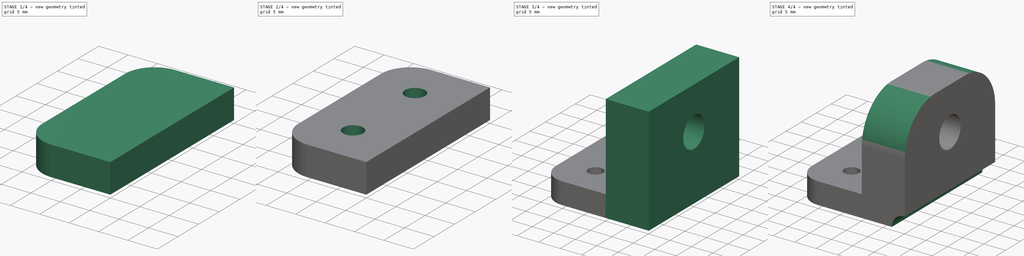
[diagram: build sequence overview — one tinted view per stage of 4, left to right]
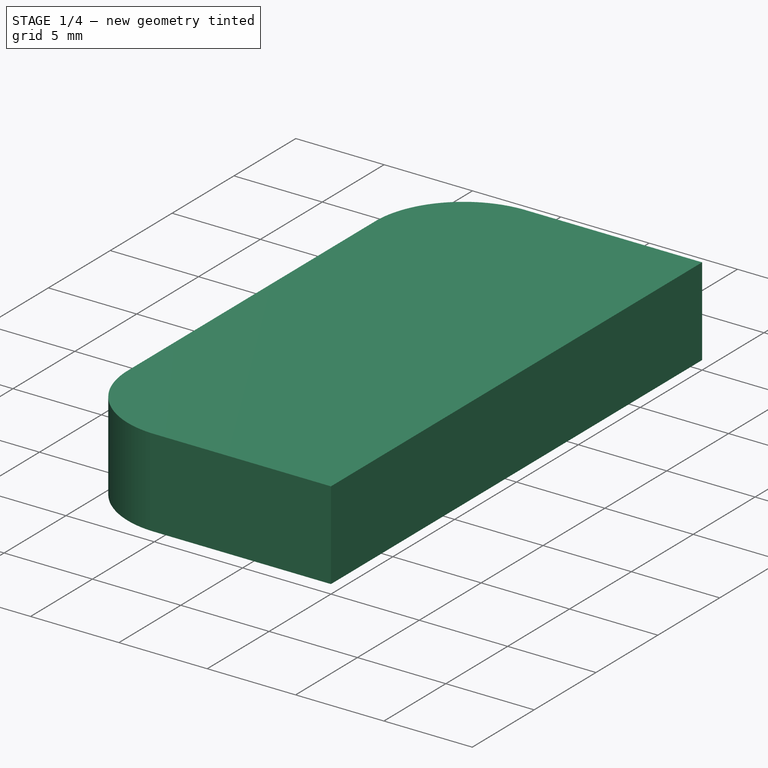
[diagram: stage 1 of 4 — iso view after this stage's code; geometry added in this stage tinted green]
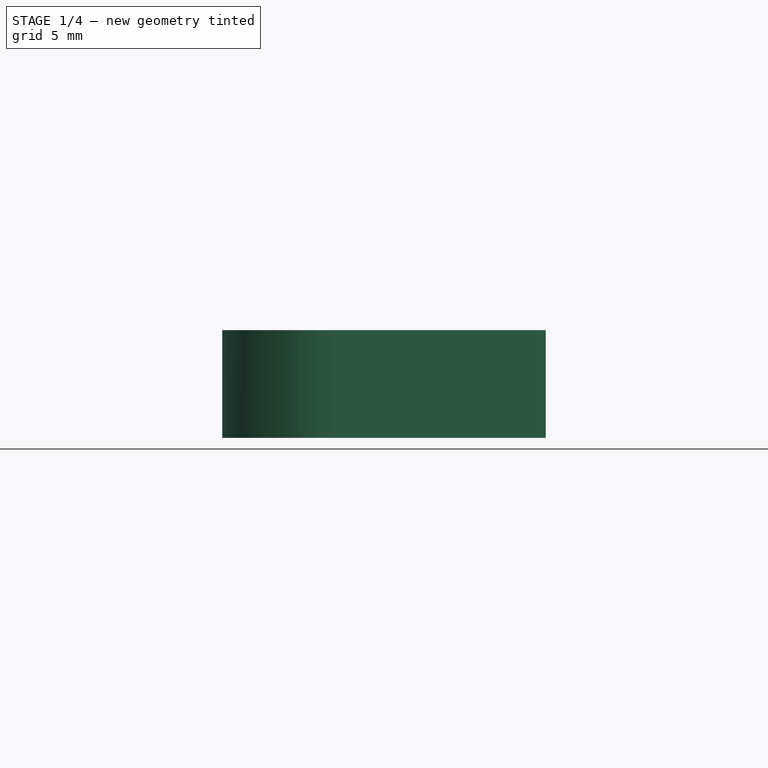
[diagram: stage 1 of 4 — front view after this stage's code; geometry added in this stage tinted green]
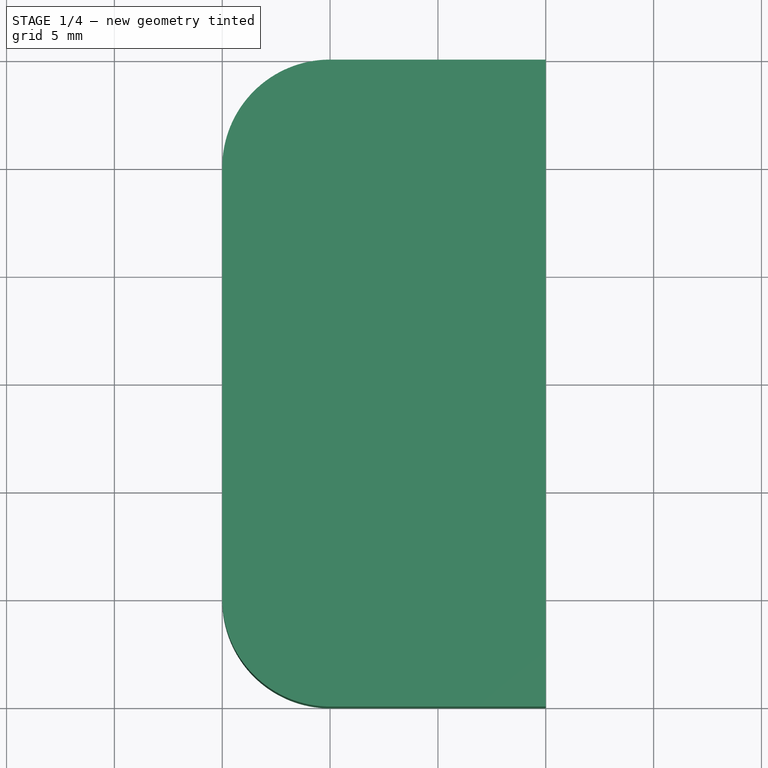
[diagram: stage 1 of 4 — top view after this stage's code; geometry added in this stage tinted green]
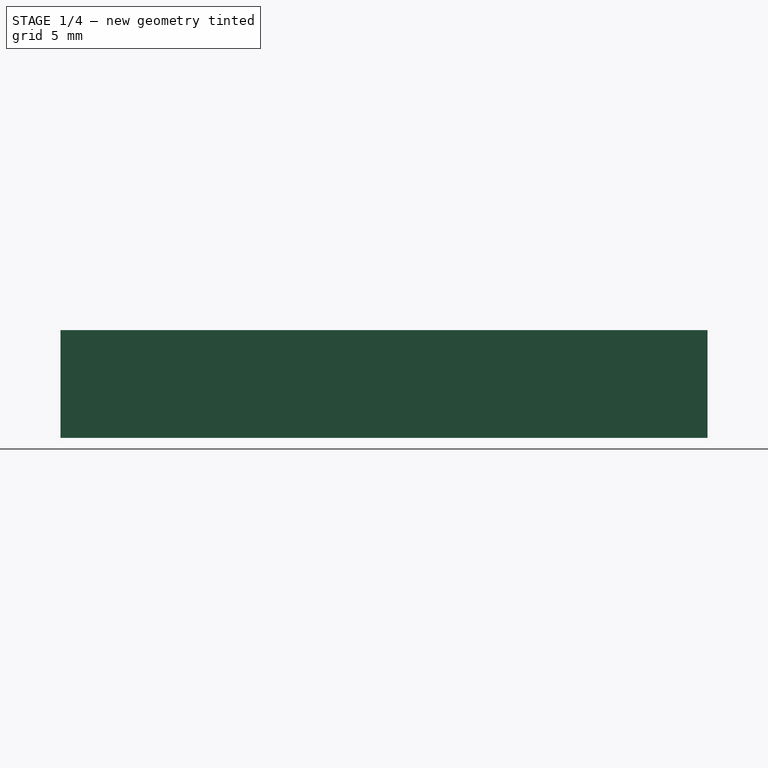
[diagram: stage 1 of 4 — right view after this stage's code; geometry added in this stage tinted green]
FCSTD DOCUMENT  (FreeCAD 0.19R)
Label: Rack_post_connector
License: All rights reserved
LicenseURL: http://en.wikipedia.org/wiki/All_rights_reserved
objects: Sketcher::SketchObject×6, PartDesign::Pad×3, PartDesign::Mirrored×2, PartDesign::Hole×2, PartDesign::Pocket×1, PartDesign::Fillet×1, PartDesign::Body×1
note: 23 computed .brp shape members not serialized (recipe doc carries the construction recipe); baked Part::Feature solids carry a one-line shape summary decoded from their .brp

FEATURE [Sketcher::SketchObject] Sketch  label="half_base_sketch"
  FullyConstrained = true
  MapMode = 5
  Support = -> [XY_Plane]
  sketch-geometry (6):
    g0: LineSegment StartX=-15 StartY=0 StartZ=0 EndX=0 EndY=0 EndZ=0
    g1: LineSegment StartX=0 StartY=0 StartZ=0 EndX=0 EndY=15 EndZ=0
    g2: LineSegment StartX=0 StartY=15 StartZ=0 EndX=-10 EndY=15 EndZ=0
    g3: LineSegment StartX=-15 StartY=10 StartZ=0 EndX=-15 EndY=0 EndZ=0
    g4: ArcOfCircle CenterX=-10 CenterY=10 CenterZ=0 NormalX=0 NormalY=0 NormalZ=1 AngleXU=0 Radius=5 StartAngle=1.5708 EndAngle=3.14159
    g5: GeomPoint X=-15 Y=15 Z=0
  constraints (15):
    c: Coincident(g0,g1)
    c: Coincident(g1,g2)
    c: Coincident(g3,g0)
    c: Horizontal(g2)
    c: Vertical(g1)
    c: Vertical(g3)
    c: PointOnObject(g0,g-1)
    c: DistanceX(g0,g-1) = 15
    c: DistanceY(g1,g1) = 15
    c: PointOnObject(g5,g2)
    c: PointOnObject(g5,g3)
    c: Tangent(g2,g4) = -1.5708
    c: Tangent(g3,g4) = -1.5708
    c: Radius(g4) = 5
    c: Coincident(g0,g-1)
FEATURE [PartDesign::Pad] Pad  label="half_base"
  Direction = (1,1,1)
  Length = 5
  Length2 = 100
  Profile = -> Sketch
  Type = 0
FEATURE [PartDesign::Mirrored] Mirrored  label="base"
  BaseFeature = -> Pad
  MirrorPlane = -> XZ_Plane
  Originals = -> [Pad]
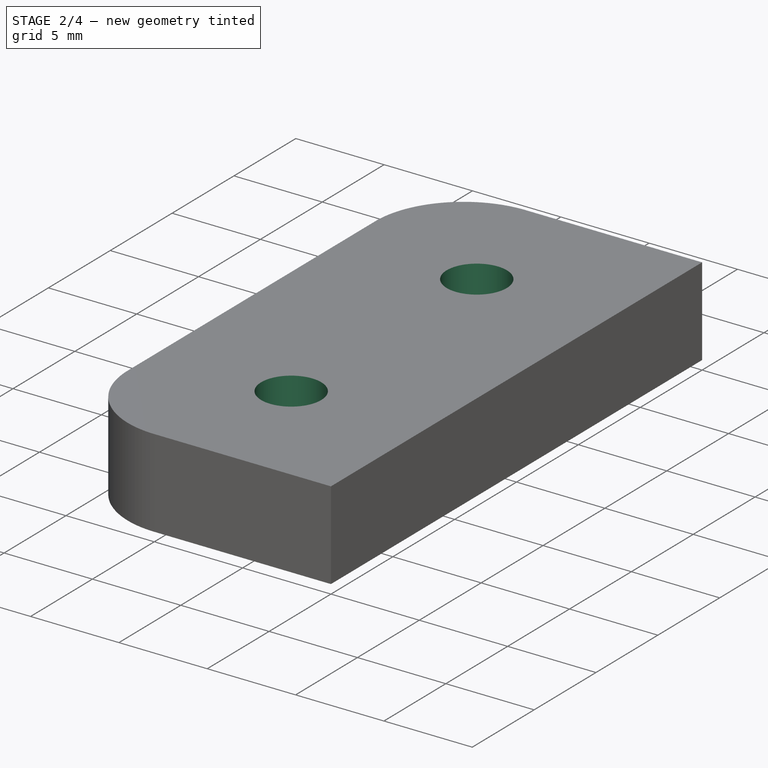
[diagram: stage 2 of 4 — iso view after this stage's code; geometry added in this stage tinted green]
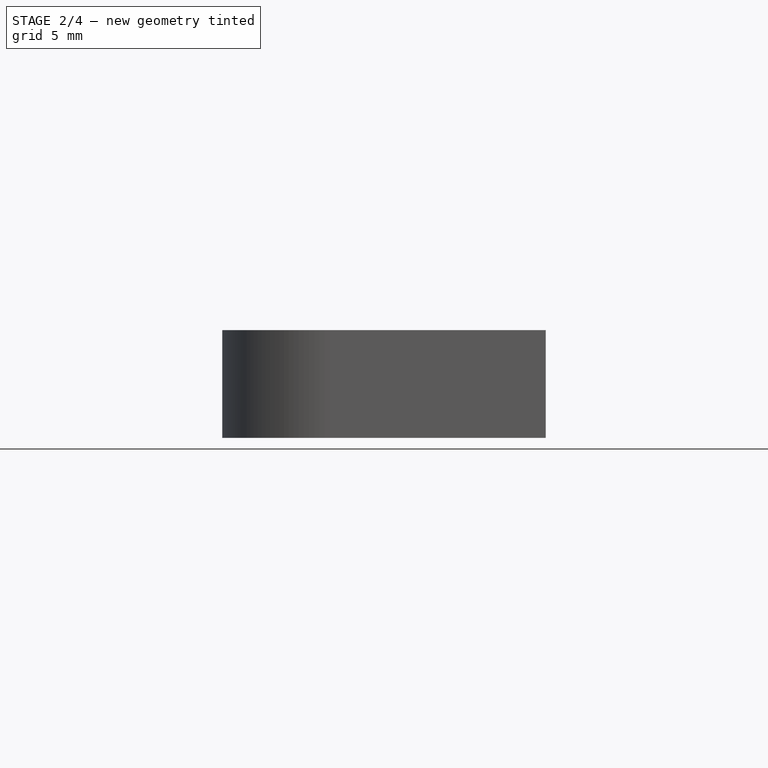
[diagram: stage 2 of 4 — front view after this stage's code; geometry added in this stage tinted green]
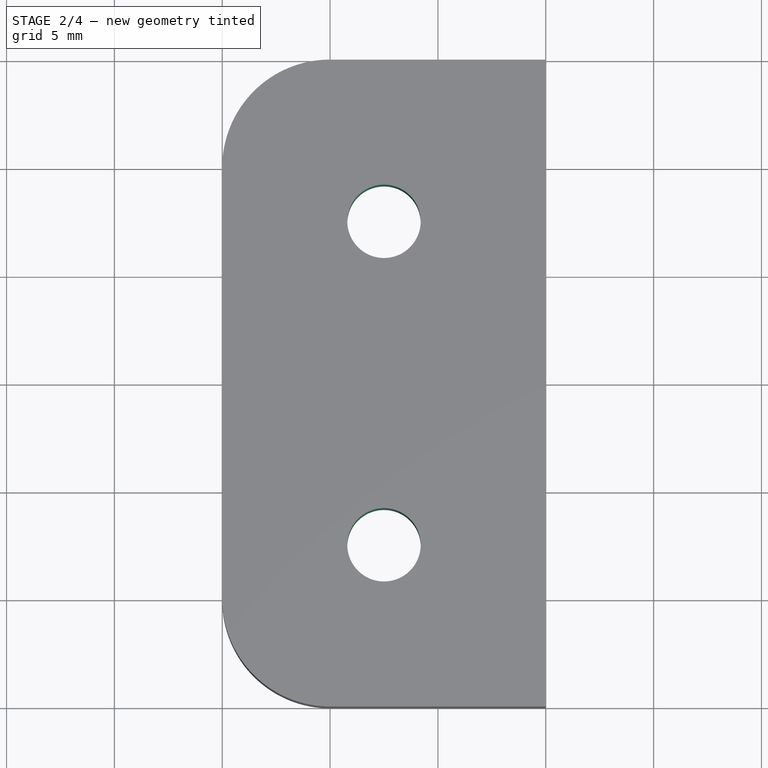
[diagram: stage 2 of 4 — top view after this stage's code; geometry added in this stage tinted green]
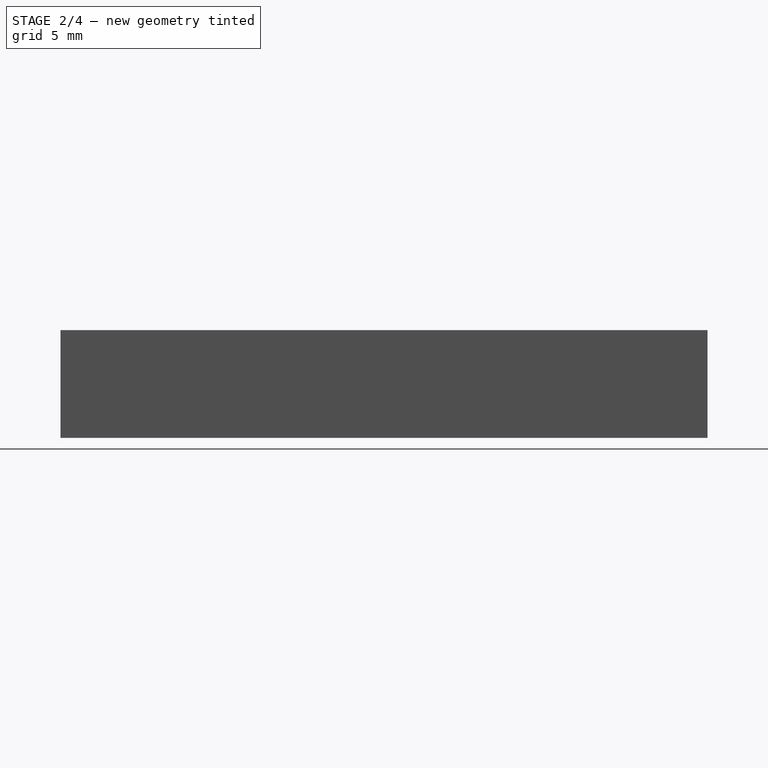
[diagram: stage 2 of 4 — right view after this stage's code; geometry added in this stage tinted green]
FEATURE [Sketcher::SketchObject] Sketch001  label="M3_hole_sketch"
  FullyConstrained = true
  MapMode = 5
  Placement = pos=(0,0,5) rot=(0,0,1;0rad)
  Support = -> [Mirrored]
  sketch-geometry (1):
    g0: Circle CenterX=-7.5 CenterY=7.5 CenterZ=0 NormalX=0 NormalY=0 NormalZ=1 AngleXU=0 Radius=1.75
  constraints (3):
    c: DistanceX(g-2,g0) = -7.5
    c: DistanceY(g-1,g0) = 7.5
    c: Radius(g0) = 1.75
FEATURE [PartDesign::Hole] Hole  label="M3_hole"
  BaseFeature = -> Mirrored
  Depth = 25
  DepthType = 1
  Diameter = 3.4
  DrillForDepth = false
  DrillPoint = 1
  DrillPointAngle = 118
  HoleCutCountersinkAngle = 90
  HoleCutCustomValues = false
  HoleCutDepth = 0
  HoleCutDiameter = 6.1
  HoleCutType = 0
  ModelActualThread = false
  Profile = -> Sketch001
  Tapered = false
  TaperedAngle = 90
  ThreadAngle = 0
  ThreadClass = 0
  ThreadCutOffInner = 0
  ThreadCutOffOuter = 0
  ThreadDirection = 0
  ThreadFit = 0
  ThreadPitch = 0
  ThreadSize = 9
  ThreadType = 1
  Threaded = false
FEATURE [PartDesign::Mirrored] Mirrored001  label="dual_M3_hole"
  BaseFeature = -> Hole
  MirrorPlane = -> XZ_Plane
  Originals = -> [Hole]
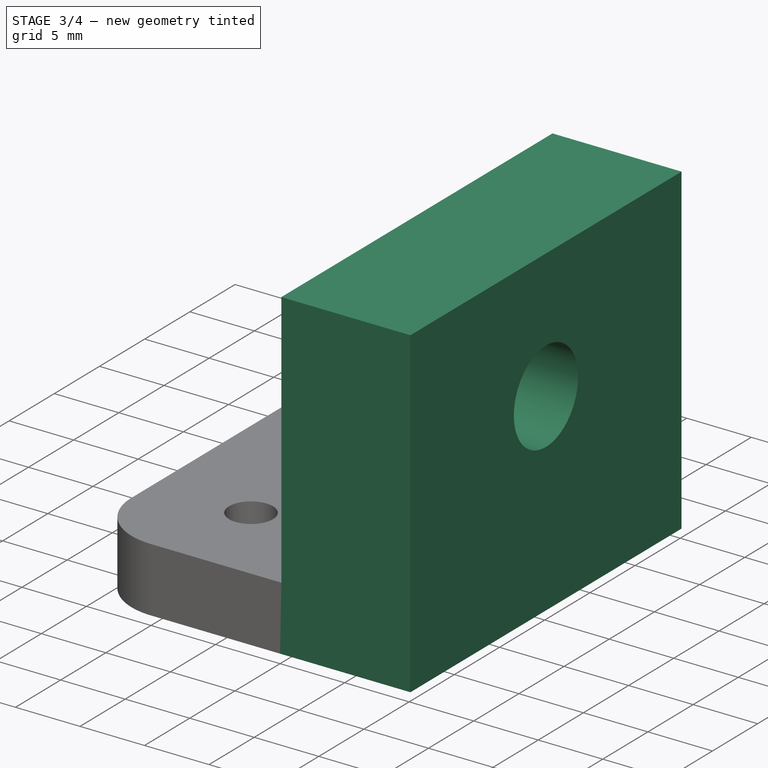
[diagram: stage 3 of 4 — iso view after this stage's code; geometry added in this stage tinted green]
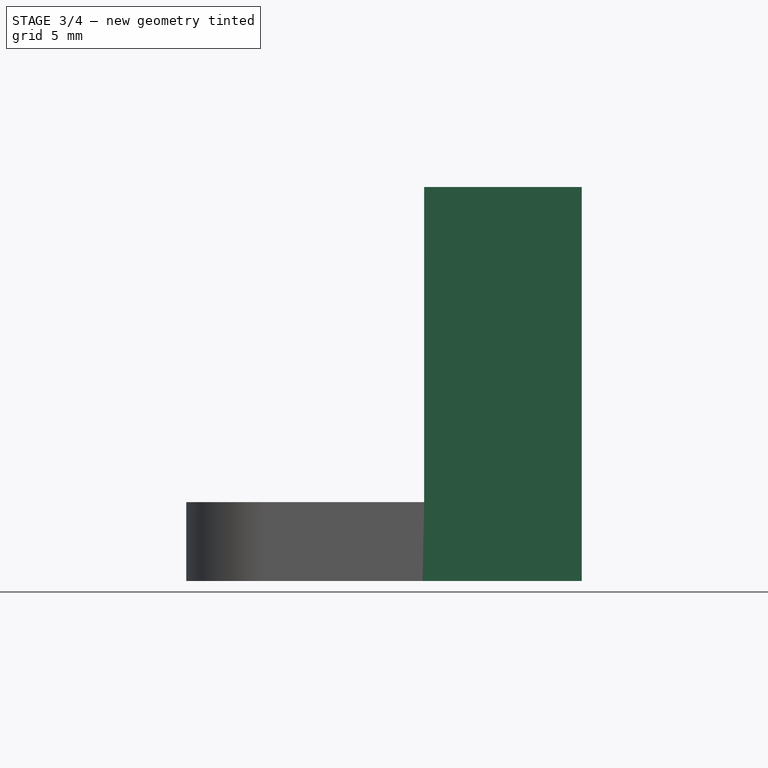
[diagram: stage 3 of 4 — front view after this stage's code; geometry added in this stage tinted green]
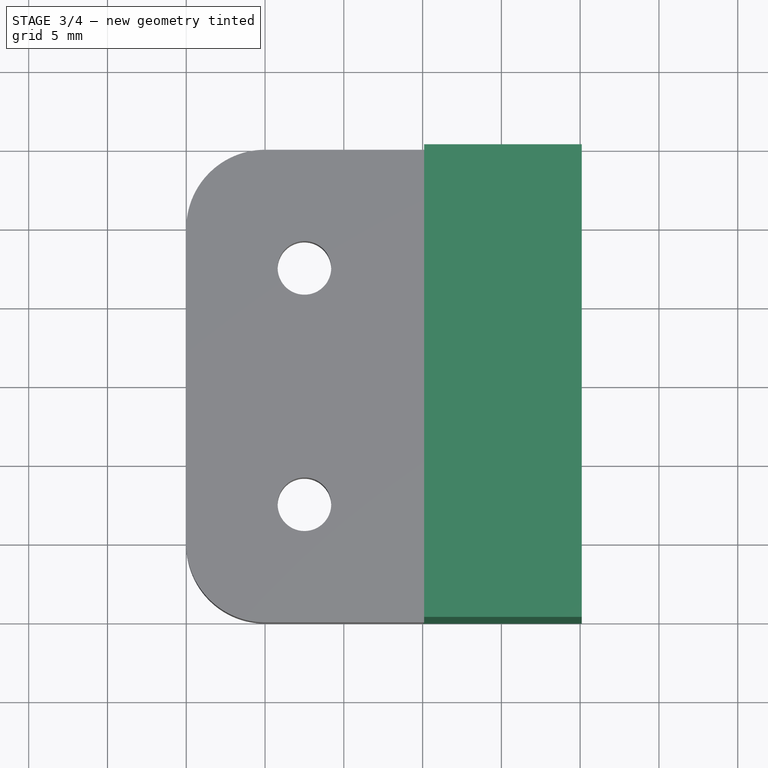
[diagram: stage 3 of 4 — top view after this stage's code; geometry added in this stage tinted green]
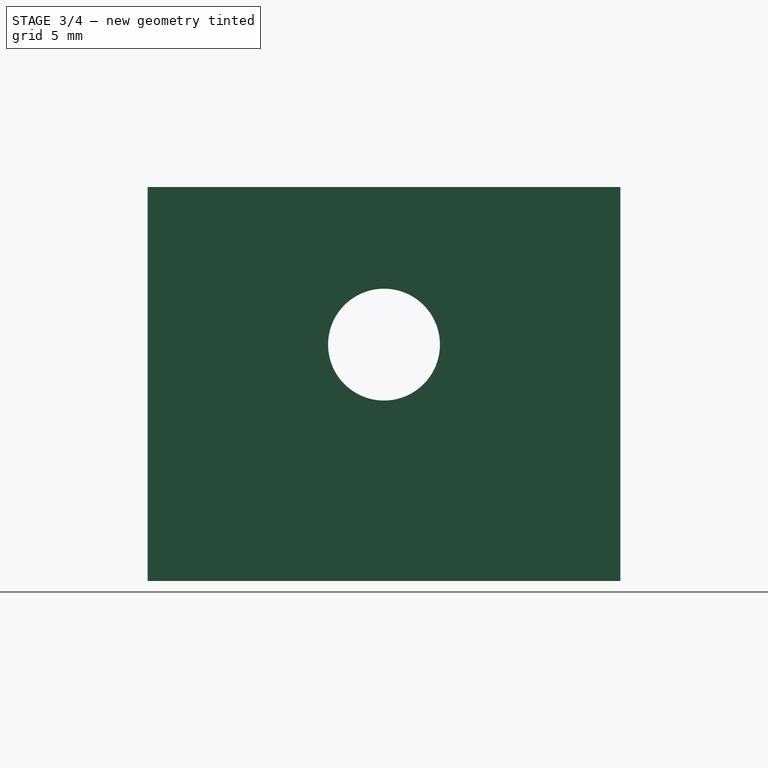
[diagram: stage 3 of 4 — right view after this stage's code; geometry added in this stage tinted green]
FEATURE [Sketcher::SketchObject] Sketch002  label="wall_extension_sketch"
  ExternalGeometry = -> [Mirrored001]
  FullyConstrained = true
  MapMode = 5
  Placement = pos=(0,0,0) rot=(0.57735,0.57735,0.57735;2.0944rad)
  Support = -> [Mirrored001]
  sketch-geometry (4):
    g0: LineSegment StartX=-15 StartY=0 StartZ=0 EndX=15 EndY=0 EndZ=0
    g1: LineSegment StartX=15 StartY=0 StartZ=0 EndX=15 EndY=5 EndZ=0
    g2: LineSegment StartX=15 StartY=5 StartZ=0 EndX=-15 EndY=5 EndZ=0
    g3: LineSegment StartX=-15 StartY=5 StartZ=0 EndX=-15 EndY=0 EndZ=0
  constraints (10):
    c: Coincident(g0,g1)
    c: Coincident(g1,g2)
    c: Coincident(g2,g3)
    c: Coincident(g3,g0)
    c: Horizontal(g0)
    c: Horizontal(g2)
    c: Vertical(g1)
    c: Vertical(g3)
    c: Coincident(g0,g-3)
    c: Coincident(g1,g-4)
FEATURE [PartDesign::Pad] Pad001  label="wall_estension"
  BaseFeature = -> Mirrored001
  Direction = (1,1,1)
  Length = 10.1
  Length2 = 100
  Profile = -> Sketch002
  Type = 0
FEATURE [Sketcher::SketchObject] Sketch003  label="wall_sketch"
  ExternalGeometry = -> [Pad001]
  FullyConstrained = true
  MapMode = 5
  Placement = pos=(0,0,5) rot=(0,0,1;0rad)
  Support = -> [Pad001]
  sketch-geometry (4):
    g0: LineSegment StartX=10.1 StartY=15 StartZ=0 EndX=0.1 EndY=15 EndZ=0
    g1: LineSegment StartX=0.1 StartY=15 StartZ=0 EndX=0.1 EndY=-15 EndZ=0
    g2: LineSegment StartX=0.1 StartY=-15 StartZ=0 EndX=10.1 EndY=-15 EndZ=0
    g3: LineSegment StartX=10.1 StartY=-15 StartZ=0 EndX=10.1 EndY=15 EndZ=0
  constraints (11):
    c: Coincident(g0,g1)
    c: Coincident(g1,g2)
    c: Coincident(g2,g3)
    c: Coincident(g3,g0)
    c: Horizontal(g0)
    c: Horizontal(g2)
    c: Vertical(g1)
    c: Vertical(g3)
    c: Coincident(g0,g-3)
    c: PointOnObject(g1,g-4)
    c: DistanceX(g0,g0) = 10
FEATURE [PartDesign::Pad] Pad002  label="wall"
  BaseFeature = -> Pad001
  Direction = (1,1,1)
  Length = 20
  Length2 = 100
  Profile = -> Sketch003
  Type = 0
FEATURE [Sketcher::SketchObject] Sketch005  label="1on4_hole_sketch"
  ExternalGeometry = -> [Pad002]
  FullyConstrained = true
  MapMode = 5
  Placement = pos=(0.1,0,0) rot=(0.57735,-0.57735,-0.57735;2.0944rad)
  Support = -> [Pad002]
  sketch-geometry (1):
    g0: Circle CenterX=0 CenterY=15 CenterZ=0 NormalX=0 NormalY=0 NormalZ=1 AngleXU=0 Radius=6
  constraints (3):
    c: PointOnObject(g0,g-2)
    c: Distance(g0,g-3) = 10
    c: Radius(g0) = 6
FEATURE [PartDesign::Hole] Hole001  label="1on4_hole"
  BaseFeature = -> Pad002
  Depth = 25
  DepthType = 1
  Diameter = 7.1
  DrillForDepth = false
  DrillPoint = 1
  DrillPointAngle = 118
  HoleCutCountersinkAngle = 90
  HoleCutCustomValues = false
  HoleCutDepth = 0
  HoleCutDiameter = 6.1
  HoleCutType = 0
  ModelActualThread = false
  Profile = -> Sketch005
  Tapered = false
  TaperedAngle = 90
  ThreadAngle = 0
  ThreadClass = 0
  ThreadCutOffInner = 0
  ThreadCutOffOuter = 0
  ThreadDirection = 0
  ThreadFit = 0
  ThreadPitch = 0
  ThreadSize = 10
  ThreadType = 4
  Threaded = false
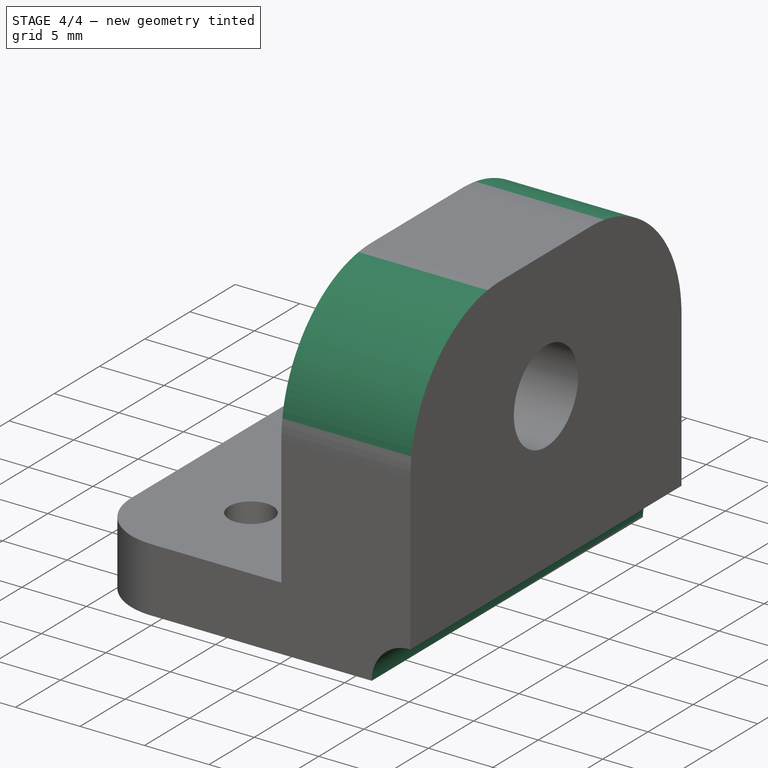
[diagram: stage 4 of 4 — iso view after this stage's code; geometry added in this stage tinted green]
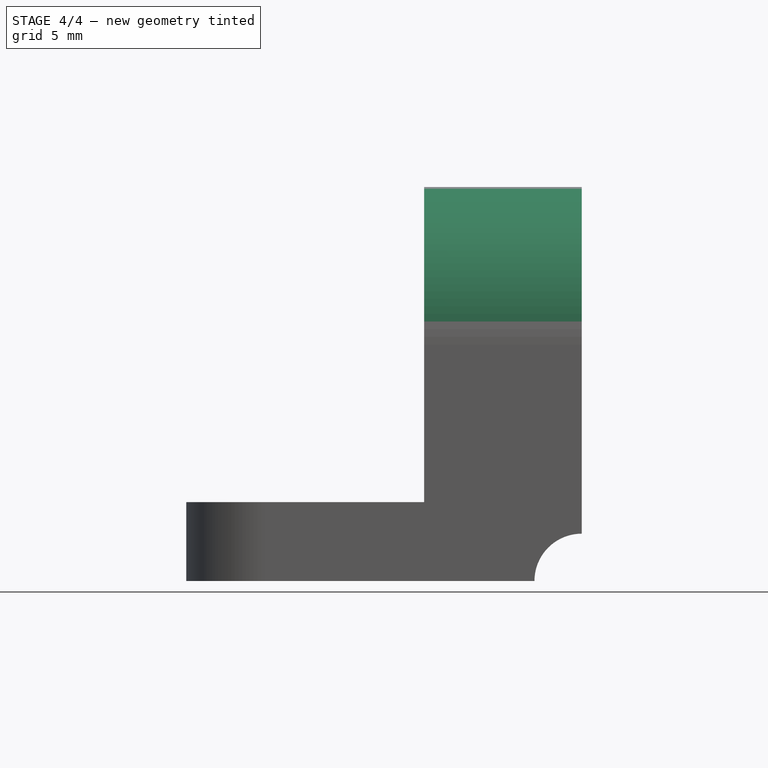
[diagram: stage 4 of 4 — front view after this stage's code; geometry added in this stage tinted green]
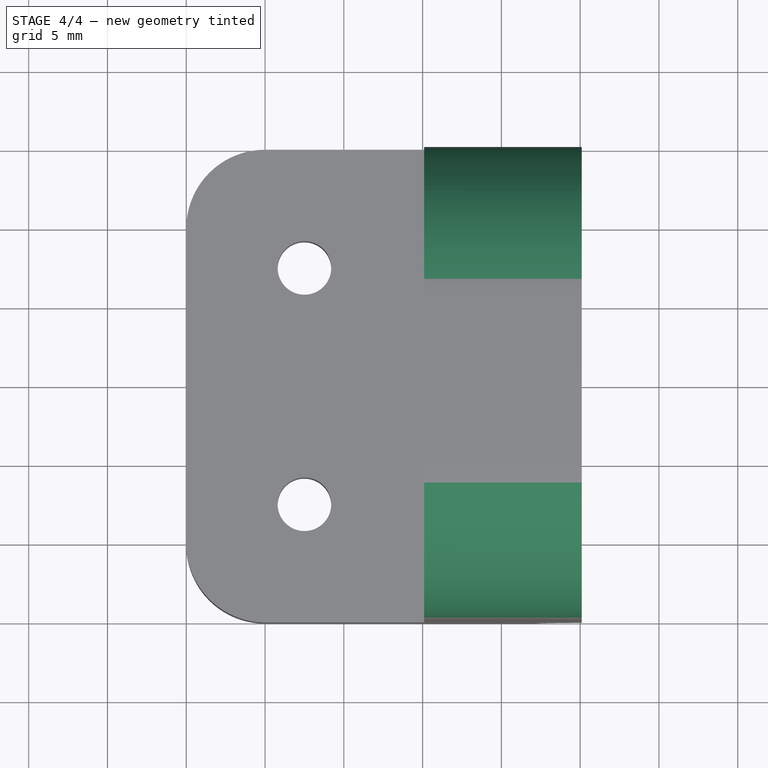
[diagram: stage 4 of 4 — top view after this stage's code; geometry added in this stage tinted green]
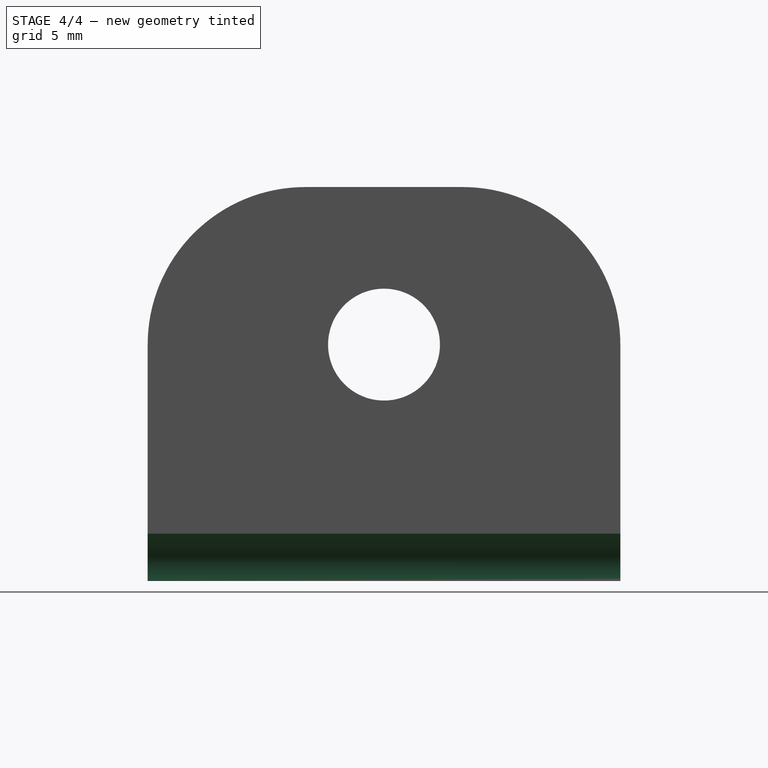
[diagram: stage 4 of 4 — right view after this stage's code; geometry added in this stage tinted green]
FEATURE [Sketcher::SketchObject] Sketch006  label="screw_tail_clearance_sketch"
  ExternalGeometry = -> [Hole001]
  FullyConstrained = true
  MapMode = 5
  Placement = pos=(0,-15,0) rot=(1,0,0;1.5708rad)
  Support = -> [Hole001]
  sketch-geometry (3):
    g0: ArcOfCircle CenterX=10.1 CenterY=0 CenterZ=0 NormalX=0 NormalY=0 NormalZ=1 AngleXU=0 Radius=3 StartAngle=1.5708 EndAngle=3.14159
    g1: LineSegment StartX=10.1 StartY=3 StartZ=0 EndX=10.1 EndY=0 EndZ=0
    g2: LineSegment StartX=10.1 StartY=0 StartZ=0 EndX=7.1 EndY=4e-16 EndZ=0
  constraints (8):
    c: Coincident(g0,g-3)
    c: PointOnObject(g0,g-1)
    c: PointOnObject(g0,g-3)
    c: Radius(g0) = 3
    c: Coincident(g1,g0)
    c: Coincident(g1,g0)
    c: Coincident(g2,g0)
    c: Coincident(g2,g0)
FEATURE [PartDesign::Pocket] Pocket  label="screw_tail_clearance"
  BaseFeature = -> Hole001
  Length = 5
  Length2 = 100
  Profile = -> Sketch006
  Type = 1
FEATURE [PartDesign::Fillet] Fillet
  Base = -> Pocket [Edge52,Edge26]
  BaseFeature = -> Pocket
  Radius = 10
  SupportTransform = false
FEATURE [PartDesign::Body] Body  label="Rack_post_connector"
  Group = -> [Sketch,Pad,Mirrored,Sketch001,Hole,Mirrored001,Sketch002,Pad001,Sketch003,Pad002,Sketch005,Hole001,Sketch006,Pocket,Fillet]
  Origin = -> Origin
  Tip = -> Fillet
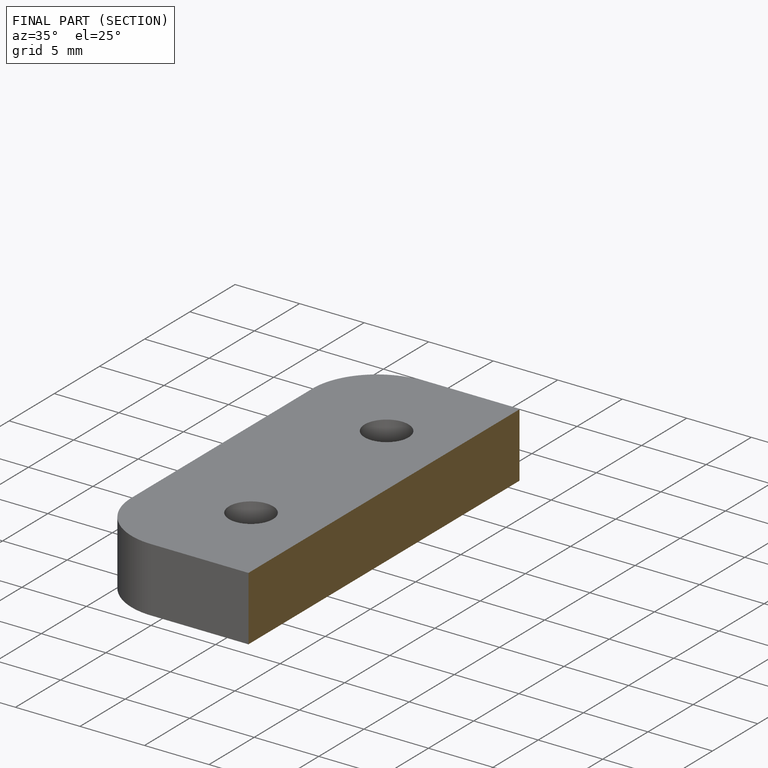
[diagram: finished part — half-section view (interior)]
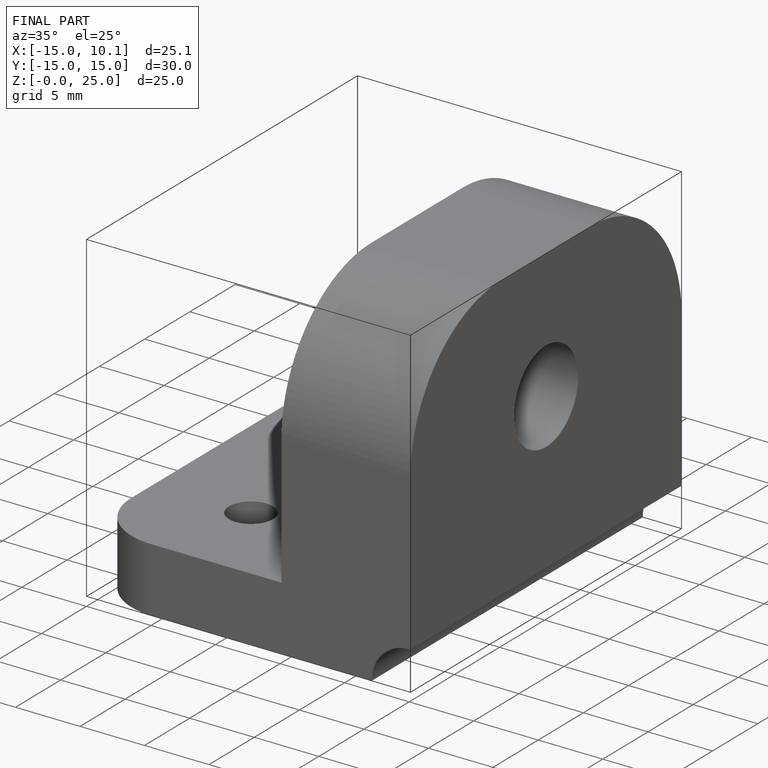
[diagram: finished part — iso view with bounding-box wireframe]
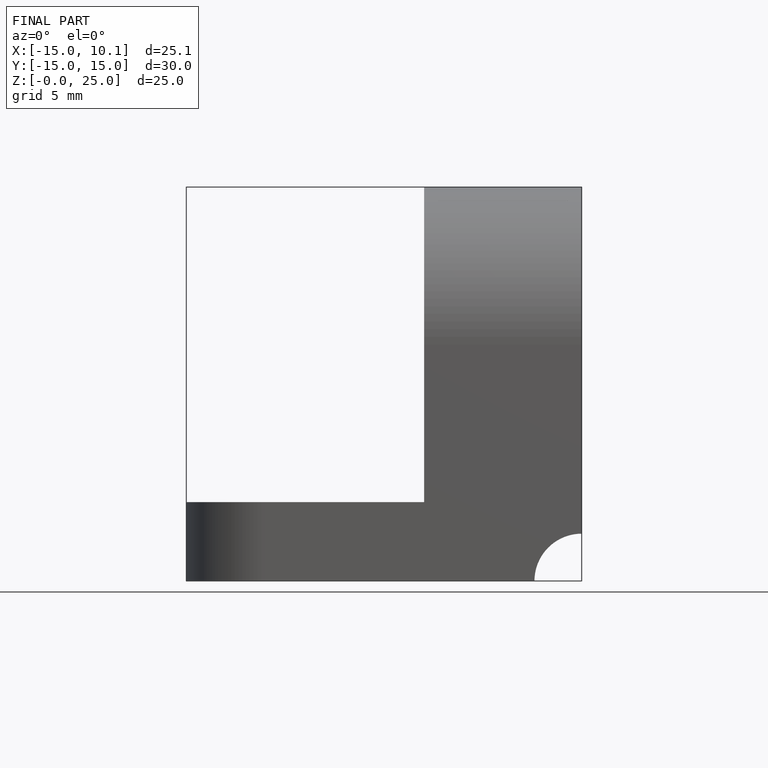
[diagram: finished part — front view with bounding-box wireframe]
